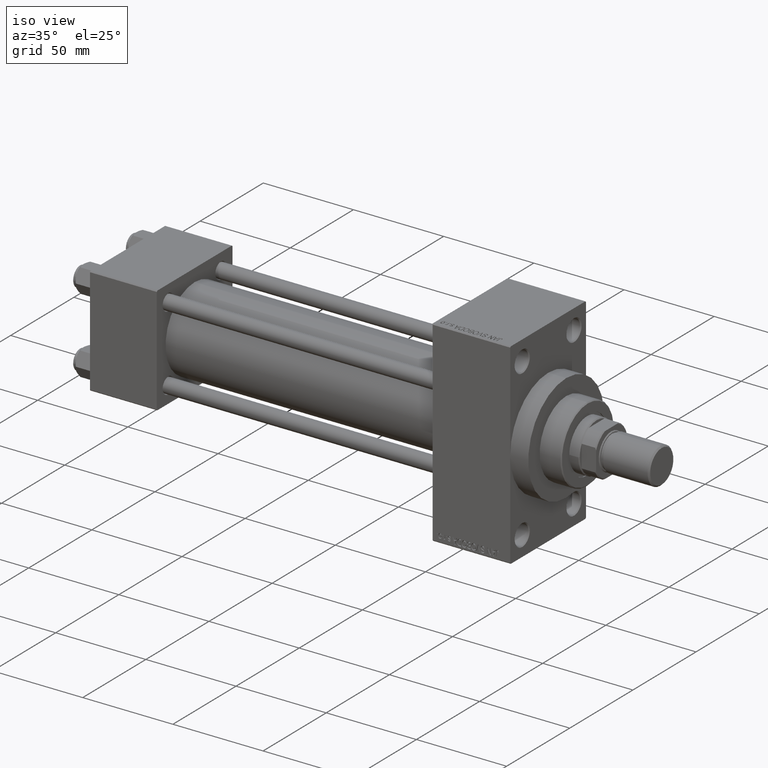
[diagram: clean part render]
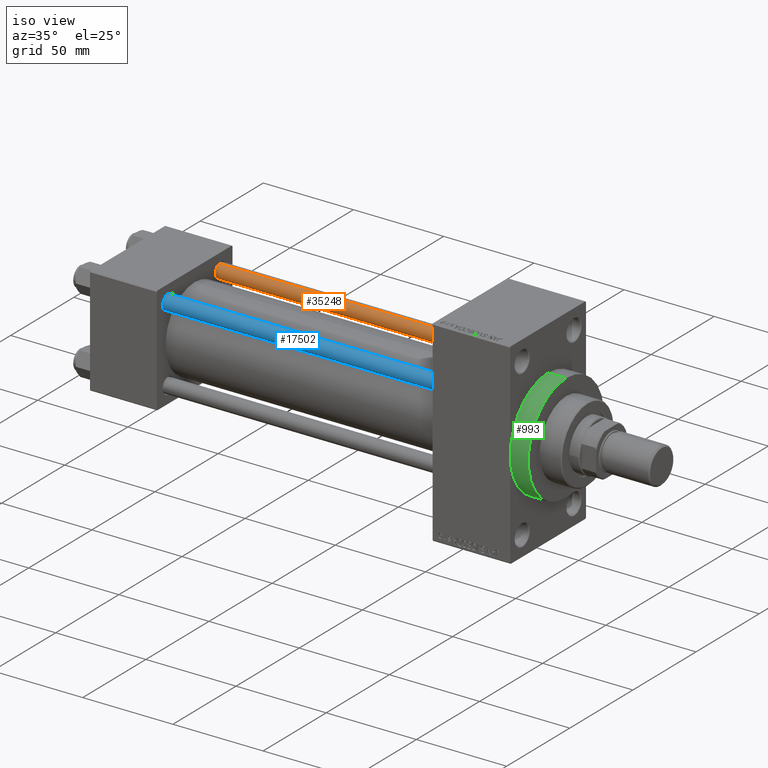
[diagram: same view with three faces highlighted in distinct colors, each labeled with its STEP entity id]
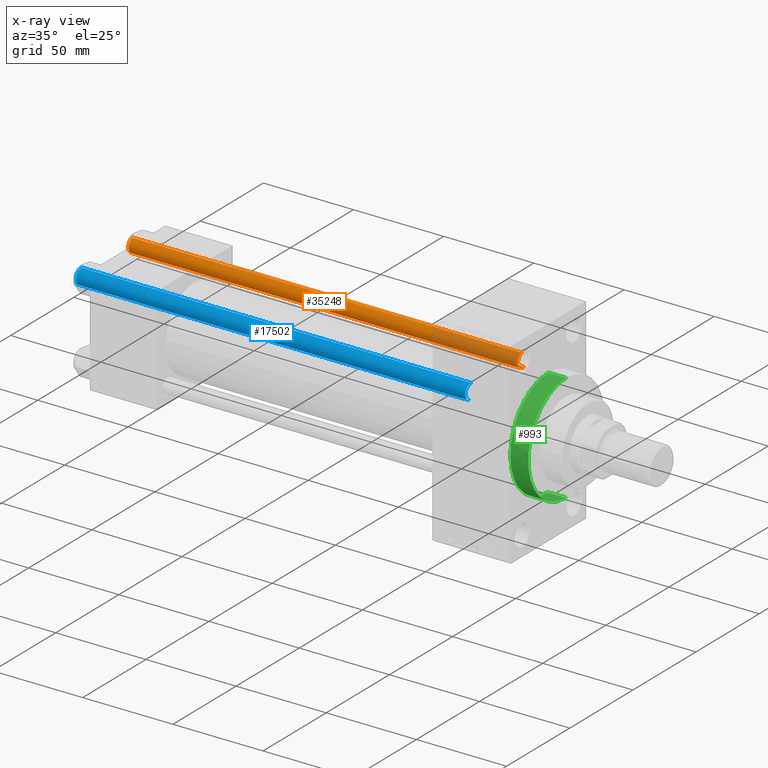
[diagram: x-ray of the same camera — body ghosted, the three highlighted faces saturated]
A machine part, iso view with three faces highlighted in distinct colors.
The next image is the same camera in x-ray (body ghosted, the three faces saturated) — at least one of them is partly hidden behind the body in this view.
Their STEP definitions:

[orange] entity #35248 — the highlighted cylindrical surface (edge-blend (fillet) strip) has radius 4 mm, axis along (-1, -0, 0).
#596 = EDGE_CURVE ( 'NONE', #41019, #8562, #7275, .T. ) ;
#653 = EDGE_CURVE ( 'NONE', #23914, #20469, #35049, .T. ) ;
#2318 = VECTOR ( 'NONE', #10452, 1000.000000000000000 ) ;
#3239 = CARTESIAN_POINT ( 'NONE',  ( 0.000000000000000000, 0.000000000000000000, 0.5000000000000004441 ) ) ;
#3527 = CARTESIAN_POINT ( 'NONE',  ( 4.000000000000000000, 4.898587196589412829E-16, 0.5000000000000004441 ) ) ;
#3778 = LINE ( 'NONE', #43381, #34874 ) ;
#3953 = CARTESIAN_POINT ( 'NONE',  ( -4.000000000000000000, 0.000000000000000000, 216.5000000000000284 ) ) ;
#7091 = DIRECTION ( 'NONE',  ( 1.000000000000000000, 0.000000000000000000, 0.000000000000000000 ) ) ;
#7275 = CIRCLE ( 'NONE', #38133, 4.000000000000000000 ) ;
#8562 = VERTEX_POINT ( 'NONE', #3527 ) ;
#9350 = ORIENTED_EDGE ( 'NONE', *, *, #653, .T. ) ;
#10452 = DIRECTION ( 'NONE',  ( -0.000000000000000000, -0.000000000000000000, -1.000000000000000000 ) ) ;
#12453 = EDGE_CURVE ( 'NONE', #20469, #41019, #28578, .T. ) ;
#12476 = DIRECTION ( 'NONE',  ( -1.000000000000000000, 0.000000000000000000, 0.000000000000000000 ) ) ;
#14178 = AXIS2_PLACEMENT_3D ( 'NONE', #43791, #28370, #7091 ) ;
#14410 = AXIS2_PLACEMENT_3D ( 'NONE', #16337, #23110, #12476 ) ;
#14565 = DIRECTION ( 'NONE',  ( 1.000000000000000000, 0.000000000000000000, 0.000000000000000000 ) ) ;
#16337 = CARTESIAN_POINT ( 'NONE',  ( 0.000000000000000000, 0.000000000000000000, 217.0000000000000000 ) ) ;
#18439 = DIRECTION ( 'NONE',  ( -0.000000000000000000, -0.000000000000000000, 1.000000000000000000 ) ) ;
#20469 = VERTEX_POINT ( 'NONE', #3953 ) ;
#21246 = CARTESIAN_POINT ( 'NONE',  ( -4.000000000000000000, 0.000000000000000000, 0.5000000000000004441 ) ) ;
#22880 = FACE_OUTER_BOUND ( 'NONE', #45502, .T. ) ;
#23110 = DIRECTION ( 'NONE',  ( -0.000000000000000000, -0.000000000000000000, -1.000000000000000000 ) ) ;
#23914 = VERTEX_POINT ( 'NONE', #42130 ) ;
#27441 = ORIENTED_EDGE ( 'NONE', *, *, #596, .T. ) ;
#28370 = DIRECTION ( 'NONE',  ( 0.000000000000000000, 0.000000000000000000, -1.000000000000000000 ) ) ;
#28578 = LINE ( 'NONE', #43775, #2318 ) ;
#30613 = ORIENTED_EDGE ( 'NONE', *, *, #41504, .F. ) ;
#34874 = VECTOR ( 'NONE', #44092, 1000.000000000000000 ) ;
#35049 = CIRCLE ( 'NONE', #14178, 4.000000000000000000 ) ;
#35248 = ADVANCED_FACE ( 'NONE', ( #22880 ), #45327, .T. ) ;
#38133 = AXIS2_PLACEMENT_3D ( 'NONE', #3239, #18439, #14565 ) ;
#41019 = VERTEX_POINT ( 'NONE', #21246 ) ;
#41504 = EDGE_CURVE ( 'NONE', #23914, #8562, #3778, .T. ) ;
#42130 = CARTESIAN_POINT ( 'NONE',  ( 4.000000000000000000, 4.898587196589412829E-16, 216.5000000000000284 ) ) ;
#43381 = CARTESIAN_POINT ( 'NONE',  ( 4.000000000000000000, 4.898587196589412829E-16, 217.0000000000000000 ) ) ;
#43775 = CARTESIAN_POINT ( 'NONE',  ( -4.000000000000000000, 0.000000000000000000, 217.0000000000000000 ) ) ;
#43791 = CARTESIAN_POINT ( 'NONE',  ( 0.000000000000000000, 0.000000000000000000, 216.5000000000000284 ) ) ;
#44092 = DIRECTION ( 'NONE',  ( -0.000000000000000000, -0.000000000000000000, -1.000000000000000000 ) ) ;
#45327 = CYLINDRICAL_SURFACE ( 'NONE', #14410, 4.000000000000000000 ) ;
#45502 = EDGE_LOOP ( 'NONE', ( #30613, #9350, #46407, #27441 ) ) ;
#46407 = ORIENTED_EDGE ( 'NONE', *, *, #12453, .T. ) ;

[blue] entity #17502 — the highlighted cylindrical surface (edge-blend (fillet) strip) has radius 4 mm, axis along (1, 0, 0).
#498 = ORIENTED_EDGE ( 'NONE', *, *, #43792, .T. ) ;
#1279 = ORIENTED_EDGE ( 'NONE', *, *, #41504, .T. ) ;
#1768 = AXIS2_PLACEMENT_3D ( 'NONE', #47240, #14168, #18043 ) ;
#2318 = VECTOR ( 'NONE', #10452, 1000.000000000000000 ) ;
#3527 = CARTESIAN_POINT ( 'NONE',  ( 4.000000000000000000, 4.898587196589412829E-16, 0.5000000000000004441 ) ) ;
#3778 = LINE ( 'NONE', #43381, #34874 ) ;
#3953 = CARTESIAN_POINT ( 'NONE',  ( -4.000000000000000000, 0.000000000000000000, 216.5000000000000284 ) ) ;
#4429 = CYLINDRICAL_SURFACE ( 'NONE', #27919, 4.000000000000000000 ) ;
#7062 = CIRCLE ( 'NONE', #44073, 4.000000000000000000 ) ;
#8562 = VERTEX_POINT ( 'NONE', #3527 ) ;
#9476 = CIRCLE ( 'NONE', #1768, 4.000000000000000000 ) ;
#10452 = DIRECTION ( 'NONE',  ( -0.000000000000000000, -0.000000000000000000, -1.000000000000000000 ) ) ;
#10704 = DIRECTION ( 'NONE',  ( 1.000000000000000000, 0.000000000000000000, 0.000000000000000000 ) ) ;
#10949 = DIRECTION ( 'NONE',  ( -1.000000000000000000, 0.000000000000000000, 0.000000000000000000 ) ) ;
#12453 = EDGE_CURVE ( 'NONE', #20469, #41019, #28578, .T. ) ;
#14168 = DIRECTION ( 'NONE',  ( -0.000000000000000000, -0.000000000000000000, 1.000000000000000000 ) ) ;
#14573 = CARTESIAN_POINT ( 'NONE',  ( 0.000000000000000000, 0.000000000000000000, 217.0000000000000000 ) ) ;
#17502 = ADVANCED_FACE ( 'NONE', ( #43799 ), #4429, .T. ) ;
#18043 = DIRECTION ( 'NONE',  ( 1.000000000000000000, 0.000000000000000000, 0.000000000000000000 ) ) ;
#19060 = EDGE_CURVE ( 'NONE', #8562, #41019, #9476, .T. ) ;
#20469 = VERTEX_POINT ( 'NONE', #3953 ) ;
#21246 = CARTESIAN_POINT ( 'NONE',  ( -4.000000000000000000, 0.000000000000000000, 0.5000000000000004441 ) ) ;
#22012 = ORIENTED_EDGE ( 'NONE', *, *, #19060, .T. ) ;
#23914 = VERTEX_POINT ( 'NONE', #42130 ) ;
#25942 = DIRECTION ( 'NONE',  ( -0.000000000000000000, -0.000000000000000000, -1.000000000000000000 ) ) ;
#27919 = AXIS2_PLACEMENT_3D ( 'NONE', #14573, #25942, #10949 ) ;
#28578 = LINE ( 'NONE', #43775, #2318 ) ;
#29310 = CARTESIAN_POINT ( 'NONE',  ( 0.000000000000000000, 0.000000000000000000, 216.5000000000000284 ) ) ;
#33569 = EDGE_LOOP ( 'NONE', ( #498, #1279, #22012, #47419 ) ) ;
#34874 = VECTOR ( 'NONE', #44092, 1000.000000000000000 ) ;
#37521 = DIRECTION ( 'NONE',  ( 0.000000000000000000, 0.000000000000000000, -1.000000000000000000 ) ) ;
#41019 = VERTEX_POINT ( 'NONE', #21246 ) ;
#41504 = EDGE_CURVE ( 'NONE', #23914, #8562, #3778, .T. ) ;
#42130 = CARTESIAN_POINT ( 'NONE',  ( 4.000000000000000000, 4.898587196589412829E-16, 216.5000000000000284 ) ) ;
#43381 = CARTESIAN_POINT ( 'NONE',  ( 4.000000000000000000, 4.898587196589412829E-16, 217.0000000000000000 ) ) ;
#43775 = CARTESIAN_POINT ( 'NONE',  ( -4.000000000000000000, 0.000000000000000000, 217.0000000000000000 ) ) ;
#43792 = EDGE_CURVE ( 'NONE', #20469, #23914, #7062, .T. ) ;
#43799 = FACE_OUTER_BOUND ( 'NONE', #33569, .T. ) ;
#44073 = AXIS2_PLACEMENT_3D ( 'NONE', #29310, #37521, #10704 ) ;
#44092 = DIRECTION ( 'NONE',  ( -0.000000000000000000, -0.000000000000000000, -1.000000000000000000 ) ) ;
#47240 = CARTESIAN_POINT ( 'NONE',  ( 0.000000000000000000, 0.000000000000000000, 0.5000000000000004441 ) ) ;
#47419 = ORIENTED_EDGE ( 'NONE', *, *, #12453, .F. ) ;

[green] entity #993 — the highlighted cylindrical surface (partial cylindrical patch) has radius 30 mm, axis along (-1, -0, -0).
#316 = ORIENTED_EDGE ( 'NONE', *, *, #12637, .F. ) ;
#974 = AXIS2_PLACEMENT_3D ( 'NONE', #14095, #44033, #25223 ) ;
#993 = ADVANCED_FACE ( 'NONE', ( #47105 ), #21307, .T. ) ;
#1405 = ORIENTED_EDGE ( 'NONE', *, *, #5238, .T. ) ;
#2952 = CARTESIAN_POINT ( 'NONE',  ( 243.0000000000000000, 0.000000000000000000, 0.000000000000000000 ) ) ;
#3736 = DIRECTION ( 'NONE',  ( 1.000000000000000000, 0.000000000000000000, 0.000000000000000000 ) ) ;
#4130 = ORIENTED_EDGE ( 'NONE', *, *, #46183, .T. ) ;
#5238 = EDGE_CURVE ( 'NONE', #33064, #10918, #11920, .T. ) ;
#6896 = DIRECTION ( 'NONE',  ( 1.000000000000000000, 0.000000000000000000, 0.000000000000000000 ) ) ;
#7786 = CARTESIAN_POINT ( 'NONE',  ( 243.0000000000000000, 3.673940397442059178E-15, -30.00000000000000000 ) ) ;
#8310 = CARTESIAN_POINT ( 'NONE',  ( 232.9999999999999716, 3.673940397442059178E-15, -30.00000000000000000 ) ) ;
#9645 = VERTEX_POINT ( 'NONE', #41650 ) ;
#10493 = DIRECTION ( 'NONE',  ( 0.000000000000000000, 0.000000000000000000, -1.000000000000000000 ) ) ;
#10508 = CARTESIAN_POINT ( 'NONE',  ( 243.0000000000000000, 0.000000000000000000, 0.000000000000000000 ) ) ;
#10918 = VERTEX_POINT ( 'NONE', #8310 ) ;
#10919 = LINE ( 'NONE', #7786, #32358 ) ;
#11228 = EDGE_LOOP ( 'NONE', ( #316, #37992, #33758, #4130, #1405 ) ) ;
#11920 = CIRCLE ( 'NONE', #35073, 30.00000000000000000 ) ;
#12637 = EDGE_CURVE ( 'NONE', #13686, #10918, #10919, .T. ) ;
#13371 = AXIS2_PLACEMENT_3D ( 'NONE', #2952, #35572, #35811 ) ;
#13686 = VERTEX_POINT ( 'NONE', #22527 ) ;
#14095 = CARTESIAN_POINT ( 'NONE',  ( 232.9999999999999716, 0.000000000000000000, 0.000000000000000000 ) ) ;
#17985 = EDGE_CURVE ( 'NONE', #36271, #9645, #42754, .T. ) ;
#18229 = CARTESIAN_POINT ( 'NONE',  ( 232.9999999999999716, 0.000000000000000000, 0.000000000000000000 ) ) ;
#18732 = AXIS2_PLACEMENT_3D ( 'NONE', #10508, #6896, #21614 ) ;
#21307 = CYLINDRICAL_SURFACE ( 'NONE', #13371, 30.00000000000000000 ) ;
#21614 = DIRECTION ( 'NONE',  ( 0.000000000000000000, 0.000000000000000000, -1.000000000000000000 ) ) ;
#22527 = CARTESIAN_POINT ( 'NONE',  ( 243.0000000000000000, 3.673940397442059178E-15, -30.00000000000000000 ) ) ;
#23200 = EDGE_CURVE ( 'NONE', #36271, #13686, #39557, .T. ) ;
#25223 = DIRECTION ( 'NONE',  ( 0.000000000000000000, 0.000000000000000000, -1.000000000000000000 ) ) ;
#27564 = DIRECTION ( 'NONE',  ( -1.000000000000000000, -0.000000000000000000, -0.000000000000000000 ) ) ;
#27981 = CIRCLE ( 'NONE', #974, 30.00000000000000000 ) ;
#31345 = CARTESIAN_POINT ( 'NONE',  ( 243.0000000000000000, 0.000000000000000000, 30.00000000000000000 ) ) ;
#32358 = VECTOR ( 'NONE', #45620, 1000.000000000000000 ) ;
#33064 = VERTEX_POINT ( 'NONE', #43786 ) ;
#33758 = ORIENTED_EDGE ( 'NONE', *, *, #17985, .T. ) ;
#35073 = AXIS2_PLACEMENT_3D ( 'NONE', #18229, #3736, #10493 ) ;
#35572 = DIRECTION ( 'NONE',  ( -1.000000000000000000, -0.000000000000000000, -0.000000000000000000 ) ) ;
#35811 = DIRECTION ( 'NONE',  ( 0.000000000000000000, 0.000000000000000000, 1.000000000000000000 ) ) ;
#36271 = VERTEX_POINT ( 'NONE', #31345 ) ;
#37992 = ORIENTED_EDGE ( 'NONE', *, *, #23200, .F. ) ;
#39365 = CARTESIAN_POINT ( 'NONE',  ( 243.0000000000000000, 0.000000000000000000, 30.00000000000000000 ) ) ;
#39557 = CIRCLE ( 'NONE', #18732, 30.00000000000000000 ) ;
#41022 = VECTOR ( 'NONE', #27564, 1000.000000000000000 ) ;
#41650 = CARTESIAN_POINT ( 'NONE',  ( 232.9999999999999716, 0.000000000000000000, 30.00000000000000000 ) ) ;
#42754 = LINE ( 'NONE', #39365, #41022 ) ;
#43786 = CARTESIAN_POINT ( 'NONE',  ( 232.9999999999999716, -30.00000000000000000, 0.000000000000000000 ) ) ;
#44033 = DIRECTION ( 'NONE',  ( 1.000000000000000000, 0.000000000000000000, 0.000000000000000000 ) ) ;
#45620 = DIRECTION ( 'NONE',  ( -1.000000000000000000, -0.000000000000000000, -0.000000000000000000 ) ) ;
#46183 = EDGE_CURVE ( 'NONE', #9645, #33064, #27981, .T. ) ;
#47105 = FACE_OUTER_BOUND ( 'NONE', #11228, .T. ) ;